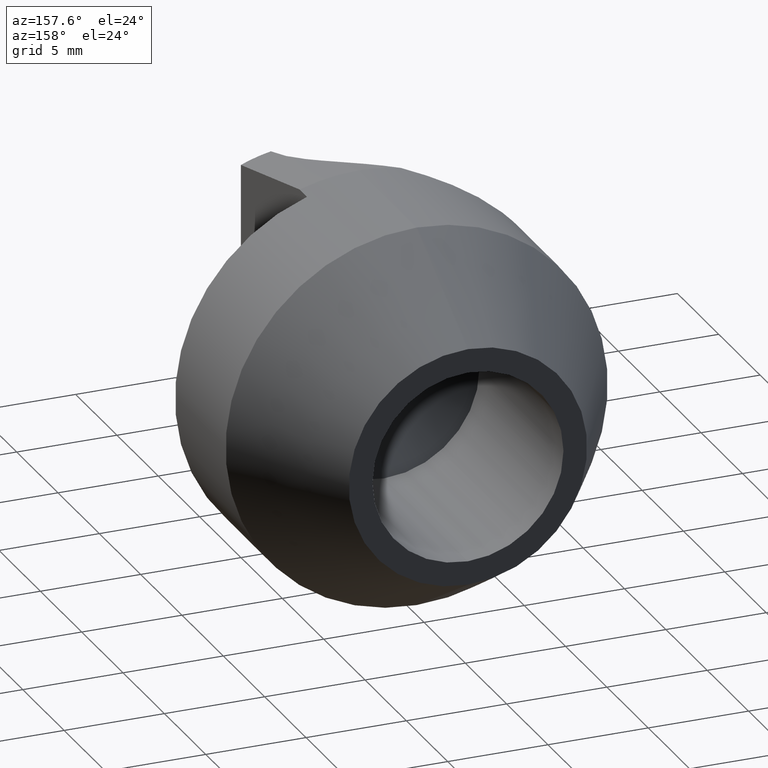
[diagram: clean part render]
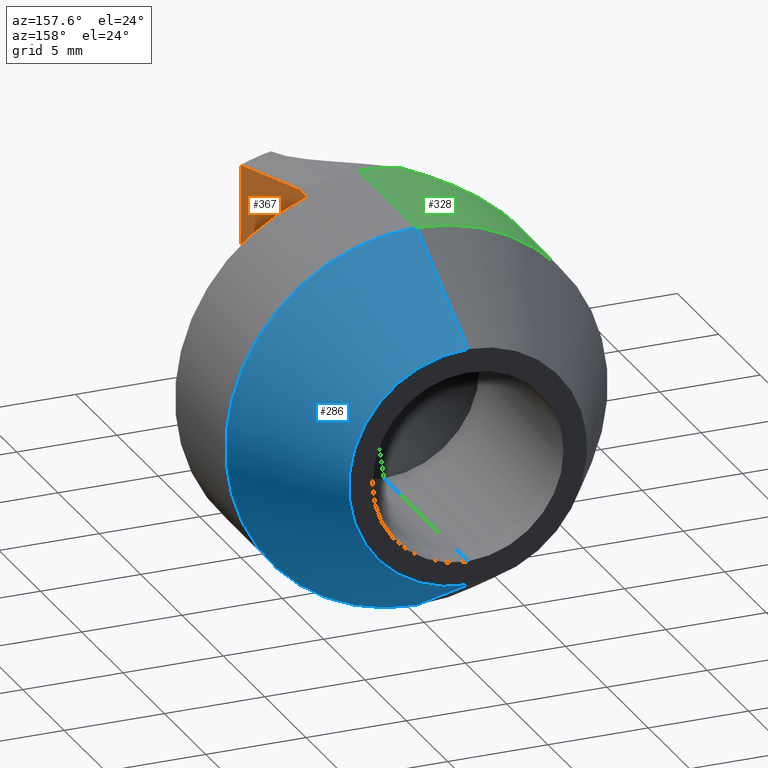
[diagram: same view with three faces highlighted in distinct colors, each labeled with its STEP entity id]
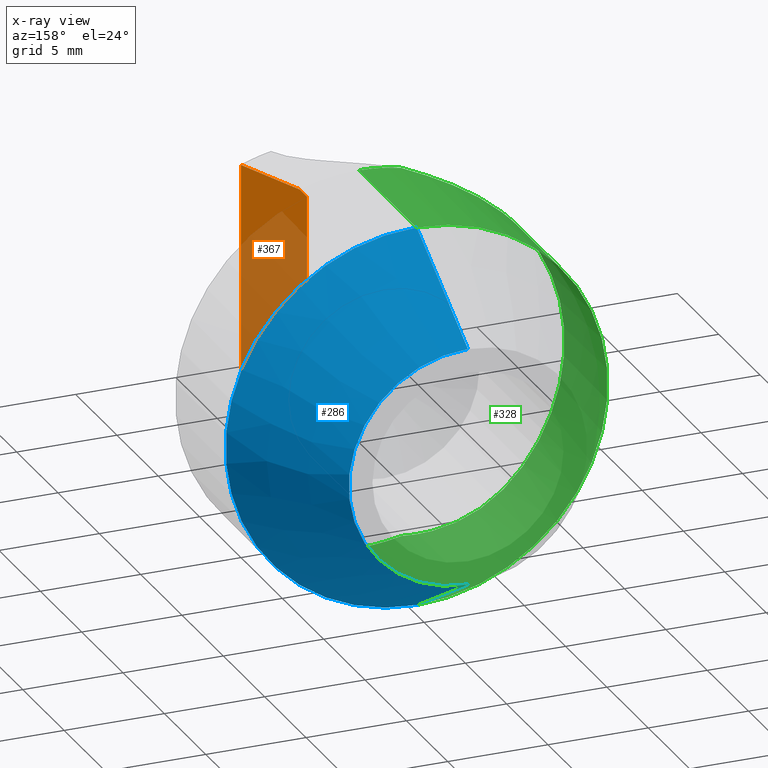
[diagram: x-ray of the same camera — body ghosted, the three highlighted faces saturated]
A machine part, auxiliary view with three faces highlighted in distinct colors.
The next image is the same camera in x-ray (body ghosted, the three faces saturated) — at least one of them is partly hidden behind the body in this view.
Their STEP definitions:

[orange] entity #367 — the highlighted planar face has unit normal (-1, -0, 0).
#6 = B_SPLINE_CURVE_WITH_KNOTS ( 'NONE', 3,
 ( #506, #469, #110, #206 ),
 .UNSPECIFIED., .F., .F.,
 ( 4, 4 ),
 ( 0.02086923273372161616, 0.02817891984336346606 ),
 .UNSPECIFIED. ) ;
#20 = EDGE_CURVE ( 'NONE', #480, #434, #172, .T. ) ;
#22 = CARTESIAN_POINT ( 'NONE',  ( 0.1159999999999999365, 0.3150000000000000022, -0.3566076275123682415 ) ) ;
#44 = ORIENTED_EDGE ( 'NONE', *, *, #266, .T. ) ;
#98 = B_SPLINE_CURVE_WITH_KNOTS ( 'NONE', 3,
 ( #383, #342, #164, #344 ),
 .UNSPECIFIED., .F., .F.,
 ( 4, 4 ),
 ( 0.02111884326923641614, 0.02842507369749490420 ),
 .UNSPECIFIED. ) ;
#110 = CARTESIAN_POINT ( 'NONE',  ( 0.1160000000000000198, 0.09325987593988223356, 0.3125914791619474609 ) ) ;
#129 = CARTESIAN_POINT ( 'NONE',  ( 0.1160000000000000059, 0.3150000000000000022, -0.3750000000000000555 ) ) ;
#130 = CARTESIAN_POINT ( 'NONE',  ( 0.1160000000000000059, 1.257517330416883377E-17, 0.3566076275123682415 ) ) ;
#153 = VECTOR ( 'NONE', #252, 39.37007874015748143 ) ;
#164 = CARTESIAN_POINT ( 'NONE',  ( 0.1160000000000000198, 0.1866109360835676578, -0.3346867140341758806 ) ) ;
#165 = VECTOR ( 'NONE', #484, 39.37007874015748143 ) ;
#166 = ORIENTED_EDGE ( 'NONE', *, *, #498, .T. ) ;
#167 = CARTESIAN_POINT ( 'NONE',  ( 0.1160000000000000059, 1.257517330416883377E-17, -0.3566076275123682415 ) ) ;
#172 = LINE ( 'NONE', #130, #285 ) ;
#175 = EDGE_CURVE ( 'NONE', #210, #517, #381, .T. ) ;
#177 = VERTEX_POINT ( 'NONE', #304 ) ;
#189 = EDGE_CURVE ( 'NONE', #177, #324, #466, .T. ) ;
#198 = ORIENTED_EDGE ( 'NONE', *, *, #189, .T. ) ;
#206 = CARTESIAN_POINT ( 'NONE',  ( 0.1160000000000000336, 0.000000000000000000, 0.2901727933490664268 ) ) ;
#210 = VERTEX_POINT ( 'NONE', #511 ) ;
#214 = AXIS2_PLACEMENT_3D ( 'NONE', #472, #217, #373 ) ;
#217 = DIRECTION ( 'NONE',  ( -1.000000000000000000, -1.084066664152485527E-16, 0.000000000000000000 ) ) ;
#220 = EDGE_CURVE ( 'NONE', #434, #210, #6, .T. ) ;
#252 = DIRECTION ( 'NONE',  ( 0.000000000000000000, 0.000000000000000000, -1.000000000000000000 ) ) ;
#259 = DIRECTION ( 'NONE',  ( 0.000000000000000000, 1.000000000000000000, 0.000000000000000000 ) ) ;
#266 = EDGE_CURVE ( 'NONE', #517, #177, #98, .T. ) ;
#267 = LINE ( 'NONE', #129, #165 ) ;
#276 = CARTESIAN_POINT ( 'NONE',  ( 0.1160000000000000336, -5.624125149066351640E-23, -0.2901727933490664268 ) ) ;
#285 = VECTOR ( 'NONE', #520, 39.37007874015748143 ) ;
#287 = FACE_OUTER_BOUND ( 'NONE', #491, .T. ) ;
#297 = CARTESIAN_POINT ( 'NONE',  ( 0.1160000000000000336, 0.000000000000000000, 0.000000000000000000 ) ) ;
#304 = CARTESIAN_POINT ( 'NONE',  ( 0.1160000000000000059, 0.2800000000000000266, -0.3566076275123683526 ) ) ;
#324 = VERTEX_POINT ( 'NONE', #22 ) ;
#342 = CARTESIAN_POINT ( 'NONE',  ( 0.1160000000000000198, 0.09326439239779267532, -0.3125925648705651927 ) ) ;
#343 = ORIENTED_EDGE ( 'NONE', *, *, #175, .T. ) ;
#344 = CARTESIAN_POINT ( 'NONE',  ( 0.1160000000000000059, 0.2800000000000000266, -0.3566076275123683526 ) ) ;
#365 = CARTESIAN_POINT ( 'NONE',  ( 0.1159999999999999365, 0.3150000000000000022, 0.3566076275123682415 ) ) ;
#367 = ADVANCED_FACE ( 'NONE', ( #287 ), #503, .F. ) ;
#373 = DIRECTION ( 'NONE',  ( 1.084066664152485527E-16, -1.000000000000000000, 0.000000000000000000 ) ) ;
#381 = LINE ( 'NONE', #297, #153 ) ;
#383 = CARTESIAN_POINT ( 'NONE',  ( 0.1160000000000000336, -5.624125149066351640E-23, -0.2901727933490664268 ) ) ;
#419 = ORIENTED_EDGE ( 'NONE', *, *, #20, .T. ) ;
#434 = VERTEX_POINT ( 'NONE', #528 ) ;
#466 = LINE ( 'NONE', #167, #474 ) ;
#469 = CARTESIAN_POINT ( 'NONE',  ( 0.1160000000000000198, 0.1866100775422518399, 0.3346865125115445205 ) ) ;
#472 = CARTESIAN_POINT ( 'NONE',  ( 0.1160000000000000336, 1.257517330416883685E-17, -0.3750000000000000555 ) ) ;
#474 = VECTOR ( 'NONE', #259, 39.37007874015748143 ) ;
#480 = VERTEX_POINT ( 'NONE', #365 ) ;
#481 = ORIENTED_EDGE ( 'NONE', *, *, #220, .T. ) ;
#484 = DIRECTION ( 'NONE',  ( -0.000000000000000000, -0.000000000000000000, 1.000000000000000000 ) ) ;
#491 = EDGE_LOOP ( 'NONE', ( #419, #481, #343, #44, #198, #166 ) ) ;
#498 = EDGE_CURVE ( 'NONE', #324, #480, #267, .T. ) ;
#503 = PLANE ( 'NONE',  #214 ) ;
#506 = CARTESIAN_POINT ( 'NONE',  ( 0.1160000000000000059, 0.2800000000000000266, 0.3566076275123683526 ) ) ;
#511 = CARTESIAN_POINT ( 'NONE',  ( 0.1160000000000000336, 0.000000000000000000, 0.2901727933490664268 ) ) ;
#517 = VERTEX_POINT ( 'NONE', #276 ) ;
#520 = DIRECTION ( 'NONE',  ( -0.000000000000000000, -1.000000000000000000, -0.000000000000000000 ) ) ;
#528 = CARTESIAN_POINT ( 'NONE',  ( 0.1160000000000000059, 0.2800000000000000266, 0.3566076275123683526 ) ) ;

[blue] entity #286 — the highlighted conical surface has half-angle 30 deg.
#9 = ORIENTED_EDGE ( 'NONE', *, *, #516, .T. ) ;
#32 = CARTESIAN_POINT ( 'NONE',  ( 0.000000000000000000, 0.8000000000000000444, -0.2340000000000000135 ) ) ;
#37 = CARTESIAN_POINT ( 'NONE',  ( 0.000000000000000000, 0.5557808361327850610, 0.000000000000000000 ) ) ;
#40 = AXIS2_PLACEMENT_3D ( 'NONE', #94, #440, #229 ) ;
#56 = EDGE_LOOP ( 'NONE', ( #9, #83, #432, #296 ) ) ;
#60 = VERTEX_POINT ( 'NONE', #178 ) ;
#72 = FACE_OUTER_BOUND ( 'NONE', #56, .T. ) ;
#83 = ORIENTED_EDGE ( 'NONE', *, *, #92, .T. ) ;
#92 = EDGE_CURVE ( 'NONE', #60, #394, #453, .T. ) ;
#94 = CARTESIAN_POINT ( 'NONE',  ( 0.000000000000000000, 0.8000000000000000444, 0.000000000000000000 ) ) ;
#114 = EDGE_CURVE ( 'NONE', #249, #394, #553, .T. ) ;
#124 = CARTESIAN_POINT ( 'NONE',  ( 0.000000000000000000, 0.5557808361327850610, -0.3750000000000000555 ) ) ;
#178 = CARTESIAN_POINT ( 'NONE',  ( 3.729049503403690887E-17, 0.8000000000000000444, 0.2340000000000000135 ) ) ;
#184 = CARTESIAN_POINT ( 'NONE',  ( 0.000000000000000000, 0.5557808361327850610, -0.3750000000000000555 ) ) ;
#187 = DIRECTION ( 'NONE',  ( -0.000000000000000000, -1.000000000000000000, -0.000000000000000000 ) ) ;
#188 = CARTESIAN_POINT ( 'NONE',  ( 0.000000000000000000, 0.5557808361327850610, 0.000000000000000000 ) ) ;
#191 = AXIS2_PLACEMENT_3D ( 'NONE', #188, #325, #234 ) ;
#207 = VERTEX_POINT ( 'NONE', #32 ) ;
#226 = LINE ( 'NONE', #184, #409 ) ;
#229 = DIRECTION ( 'NONE',  ( 0.000000000000000000, 0.000000000000000000, -1.000000000000000000 ) ) ;
#234 = DIRECTION ( 'NONE',  ( 0.000000000000000000, 0.000000000000000000, -1.000000000000000000 ) ) ;
#241 = CARTESIAN_POINT ( 'NONE',  ( 4.592425496802575451E-17, 0.5557808361327850610, 0.3750000000000000555 ) ) ;
#249 = VERTEX_POINT ( 'NONE', #124 ) ;
#277 = DIRECTION ( 'NONE',  ( 6.123233995736705639E-17, -0.8660254037844414832, 0.4999999999999950595 ) ) ;
#286 = ADVANCED_FACE ( 'NONE', ( #72 ), #457, .T. ) ;
#289 = CIRCLE ( 'NONE', #40, 0.2340000000000000135 ) ;
#296 = ORIENTED_EDGE ( 'NONE', *, *, #485, .F. ) ;
#321 = VECTOR ( 'NONE', #277, 39.37007874015748143 ) ;
#325 = DIRECTION ( 'NONE',  ( -0.000000000000000000, -1.000000000000000000, -0.000000000000000000 ) ) ;
#394 = VERTEX_POINT ( 'NONE', #241 ) ;
#409 = VECTOR ( 'NONE', #438, 39.37007874015748143 ) ;
#432 = ORIENTED_EDGE ( 'NONE', *, *, #114, .F. ) ;
#438 = DIRECTION ( 'NONE',  ( 0.000000000000000000, -0.8660254037844414832, -0.4999999999999950595 ) ) ;
#440 = DIRECTION ( 'NONE',  ( -0.000000000000000000, -1.000000000000000000, -0.000000000000000000 ) ) ;
#445 = CARTESIAN_POINT ( 'NONE',  ( 4.592425496802575451E-17, 0.5557808361327850610, 0.3750000000000000555 ) ) ;
#450 = DIRECTION ( 'NONE',  ( 0.000000000000000000, 0.000000000000000000, -1.000000000000000000 ) ) ;
#453 = LINE ( 'NONE', #445, #321 ) ;
#457 = CONICAL_SURFACE ( 'NONE', #524, 0.3750000000000000555, 0.5235987755982931535 ) ;
#485 = EDGE_CURVE ( 'NONE', #207, #249, #226, .T. ) ;
#516 = EDGE_CURVE ( 'NONE', #207, #60, #289, .T. ) ;
#524 = AXIS2_PLACEMENT_3D ( 'NONE', #37, #187, #450 ) ;
#553 = CIRCLE ( 'NONE', #191, 0.3750000000000000555 ) ;

[green] entity #328 — the highlighted cylindrical surface (partial cylindrical patch) has radius 9.525 mm, axis along (-0, -1, -0).
#5 = CARTESIAN_POINT ( 'NONE',  ( 0.000000000000000000, 0.2800000000000000266, -0.3750000000000000555 ) ) ;
#15 = DIRECTION ( 'NONE',  ( -0.000000000000000000, -1.000000000000000000, -0.000000000000000000 ) ) ;
#19 = CARTESIAN_POINT ( 'NONE',  ( 0.000000000000000000, 0.000000000000000000, 0.000000000000000000 ) ) ;
#21 = DIRECTION ( 'NONE',  ( 8.328804858732496440E-16, -1.000000000000000000, -0.000000000000000000 ) ) ;
#25 = CARTESIAN_POINT ( 'NONE',  ( -0.09173517367998862415, 0.2865513802599914395, -0.3637167740118287806 ) ) ;
#26 = CARTESIAN_POINT ( 'NONE',  ( -0.2632037937924236459, 0.3488152442028354949, 0.2673453676166723247 ) ) ;
#28 = CARTESIAN_POINT ( 'NONE',  ( -0.1751943201831005215, 0.3297314168070968887, 0.3317241511884505556 ) ) ;
#38 = CARTESIAN_POINT ( 'NONE',  ( -0.1564695837394791678, 0.3224289547519984533, 0.3409563486291329326 ) ) ;
#51 = CARTESIAN_POINT ( 'NONE',  ( 4.592425496802575451E-17, 0.000000000000000000, 0.3750000000000000555 ) ) ;
#52 = DIRECTION ( 'NONE',  ( -1.000000000000000000, -9.106159978880875423E-16, 0.000000000000000000 ) ) ;
#53 = CARTESIAN_POINT ( 'NONE',  ( -0.2636543918100952566, 0.3491696361071627286, -0.2675791188318064617 ) ) ;
#55 = CARTESIAN_POINT ( 'NONE',  ( -0.1755888523203660290, 0.3302752905494422131, -0.3320461939475211621 ) ) ;
#58 = VECTOR ( 'NONE', #182, 39.37007874015748143 ) ;
#62 = CARTESIAN_POINT ( 'NONE',  ( -0.08300000000000005984, 0.2800000000000000266, 0.3656993300513415868 ) ) ;
#77 = CARTESIAN_POINT ( 'NONE',  ( 0.000000000000000000, 0.2800000000000000266, 0.000000000000000000 ) ) ;
#97 = AXIS2_PLACEMENT_3D ( 'NONE', #77, #197, #261 ) ;
#99 = DIRECTION ( 'NONE',  ( -0.000000000000000000, -1.000000000000000000, -0.000000000000000000 ) ) ;
#101 = CARTESIAN_POINT ( 'NONE',  ( -0.2304421806409243656, 0.3447711106462970077, -0.2966624757818433489 ) ) ;
#107 = CARTESIAN_POINT ( 'NONE',  ( 0.000000000000000000, 0.3500000000000003109, 0.000000000000000000 ) ) ;
#112 = EDGE_CURVE ( 'NONE', #467, #349, #483, .T. ) ;
#124 = CARTESIAN_POINT ( 'NONE',  ( 0.000000000000000000, 0.5557808361327850610, -0.3750000000000000555 ) ) ;
#134 = CIRCLE ( 'NONE', #454, 0.3750000000000000555 ) ;
#138 = EDGE_CURVE ( 'NONE', #394, #249, #134, .T. ) ;
#140 = DIRECTION ( 'NONE',  ( 0.000000000000000000, 0.000000000000000000, -1.000000000000000000 ) ) ;
#143 = CARTESIAN_POINT ( 'NONE',  ( -0.1006927159445004383, 0.2926316993642499864, -0.3613552875620836269 ) ) ;
#148 = EDGE_LOOP ( 'NONE', ( #497, #551, #216, #505, #372, #537, #320, #554 ) ) ;
#169 = CARTESIAN_POINT ( 'NONE',  ( -0.2860095759409554406, 0.3499999999999998668, 0.2427940999160285440 ) ) ;
#182 = DIRECTION ( 'NONE',  ( -0.000000000000000000, -1.000000000000000000, -0.000000000000000000 ) ) ;
#185 = EDGE_CURVE ( 'NONE', #265, #340, #446, .T. ) ;
#196 = CARTESIAN_POINT ( 'NONE',  ( -0.1568029075420607765, 0.3231046993329488859, -0.3412513862951868093 ) ) ;
#197 = DIRECTION ( 'NONE',  ( -0.000000000000000000, -1.000000000000000000, -0.000000000000000000 ) ) ;
#212 = B_SPLINE_CURVE_WITH_KNOTS ( 'NONE', 3,
 ( #62, #256, #538, #410, #213, #244, #38, #28, #337, #460, #350, #378, #26, #508, #169, #348 ),
 .UNSPECIFIED., .F., .F.,
 ( 4, 2, 2, 2, 2, 2, 2, 4 ),
 ( 0.008225823542601592292, 0.009065952092789503897, 0.009906080642977413767, 0.01074620919316532537, 0.01158633774335323698, 0.01326659484372905498, 0.01410672339391696659, 0.01494685194410487646 ),
 .UNSPECIFIED. ) ;
#213 = CARTESIAN_POINT ( 'NONE',  ( -0.1284678968790500531, 0.3090911609416320260, 0.3524506349133188499 ) ) ;
#216 = ORIENTED_EDGE ( 'NONE', *, *, #509, .T. ) ;
#219 = CARTESIAN_POINT ( 'NONE',  ( -0.2929999999999999272, 0.3500000000000000333, 0.2340427311411316103 ) ) ;
#230 = CARTESIAN_POINT ( 'NONE',  ( -0.08300000000000004596, 0.2800000000000000822, -0.3656993300513415868 ) ) ;
#232 = CARTESIAN_POINT ( 'NONE',  ( -0.1190013356496691516, 0.3038747567303218267, -0.3557461862156089949 ) ) ;
#236 = CARTESIAN_POINT ( 'NONE',  ( -0.2123448512199925808, 0.3411185895289821635, -0.3098318642983278193 ) ) ;
#240 = AXIS2_PLACEMENT_3D ( 'NONE', #107, #21, #52 ) ;
#241 = CARTESIAN_POINT ( 'NONE',  ( 4.592425496802575451E-17, 0.5557808361327850610, 0.3750000000000000555 ) ) ;
#244 = CARTESIAN_POINT ( 'NONE',  ( -0.1471107150038001021, 0.3183150565916514907, 0.3450853345339359168 ) ) ;
#249 = VERTEX_POINT ( 'NONE', #124 ) ;
#256 = CARTESIAN_POINT ( 'NONE',  ( -0.09170077586641516010, 0.2865255818998113102, 0.3637245810223753151 ) ) ;
#261 = DIRECTION ( 'NONE',  ( 0.000000000000000000, 0.000000000000000000, -1.000000000000000000 ) ) ;
#262 = AXIS2_PLACEMENT_3D ( 'NONE', #19, #15, #140 ) ;
#264 = CARTESIAN_POINT ( 'NONE',  ( -0.08300000000000004596, 0.2800000000000000822, -0.3656993300513415868 ) ) ;
#265 = VERTEX_POINT ( 'NONE', #306 ) ;
#271 = CARTESIAN_POINT ( 'NONE',  ( 0.000000000000000000, 0.000000000000000000, -0.3750000000000000555 ) ) ;
#290 = DIRECTION ( 'NONE',  ( -0.000000000000000000, -1.000000000000000000, -0.000000000000000000 ) ) ;
#299 = AXIS2_PLACEMENT_3D ( 'NONE', #547, #556, #418 ) ;
#306 = CARTESIAN_POINT ( 'NONE',  ( 4.592425496802575451E-17, 0.2800000000000000266, 0.3750000000000000555 ) ) ;
#308 = EDGE_CURVE ( 'NONE', #349, #384, #526, .T. ) ;
#318 = LINE ( 'NONE', #271, #58 ) ;
#320 = ORIENTED_EDGE ( 'NONE', *, *, #408, .F. ) ;
#328 = ADVANCED_FACE ( 'NONE', ( #489 ), #531, .T. ) ;
#337 = CARTESIAN_POINT ( 'NONE',  ( -0.1846002839174809840, 0.3329312738228164537, 0.3265967015005262764 ) ) ;
#340 = VERTEX_POINT ( 'NONE', #496 ) ;
#341 = EDGE_CURVE ( 'NONE', #394, #265, #442, .T. ) ;
#348 = CARTESIAN_POINT ( 'NONE',  ( -0.2929999999999999272, 0.3500000000000000333, 0.2340427311411316103 ) ) ;
#349 = VERTEX_POINT ( 'NONE', #451 ) ;
#350 = CARTESIAN_POINT ( 'NONE',  ( -0.2301350362444401498, 0.3447174356441221610, 0.2969037184131732010 ) ) ;
#364 = CARTESIAN_POINT ( 'NONE',  ( -0.2929999999999999272, 0.3500000000000000333, -0.2340427311411317490 ) ) ;
#372 = ORIENTED_EDGE ( 'NONE', *, *, #308, .F. ) ;
#378 = CARTESIAN_POINT ( 'NONE',  ( -0.2551088060148685166, 0.3480442298683359970, 0.2750758719378489925 ) ) ;
#384 = VERTEX_POINT ( 'NONE', #264 ) ;
#394 = VERTEX_POINT ( 'NONE', #241 ) ;
#407 = CARTESIAN_POINT ( 'NONE',  ( -0.1283972217093217183, 0.3090590543249764344, -0.3524809478153913544 ) ) ;
#408 = EDGE_CURVE ( 'NONE', #340, #467, #212, .T. ) ;
#410 = CARTESIAN_POINT ( 'NONE',  ( -0.1191837504153634431, 0.3039814032407955890, 0.3556867496385958671 ) ) ;
#417 = CIRCLE ( 'NONE', #97, 0.3750000000000000555 ) ;
#418 = DIRECTION ( 'NONE',  ( 0.000000000000000000, 0.000000000000000000, -1.000000000000000000 ) ) ;
#422 = EDGE_CURVE ( 'NONE', #384, #493, #417, .T. ) ;
#442 = LINE ( 'NONE', #51, #447 ) ;
#446 = CIRCLE ( 'NONE', #299, 0.3750000000000000555 ) ;
#447 = VECTOR ( 'NONE', #99, 39.37007874015748143 ) ;
#448 = CARTESIAN_POINT ( 'NONE',  ( -0.2790028336375104390, 0.3499999999999999778, -0.2515658976339051334 ) ) ;
#451 = CARTESIAN_POINT ( 'NONE',  ( -0.2929999999999999272, 0.3500000000000000333, -0.2340427311411317490 ) ) ;
#454 = AXIS2_PLACEMENT_3D ( 'NONE', #502, #290, #459 ) ;
#459 = DIRECTION ( 'NONE',  ( 0.000000000000000000, 0.000000000000000000, -1.000000000000000000 ) ) ;
#460 = CARTESIAN_POINT ( 'NONE',  ( -0.2124558757189888014, 0.3411562254862400834, 0.3097711766550097501 ) ) ;
#467 = VERTEX_POINT ( 'NONE', #219 ) ;
#483 = CIRCLE ( 'NONE', #240, 0.3750000000000000555 ) ;
#489 = FACE_OUTER_BOUND ( 'NONE', #148, .T. ) ;
#493 = VERTEX_POINT ( 'NONE', #5 ) ;
#496 = CARTESIAN_POINT ( 'NONE',  ( -0.08300000000000005984, 0.2800000000000000266, 0.3656993300513415868 ) ) ;
#497 = ORIENTED_EDGE ( 'NONE', *, *, #341, .F. ) ;
#502 = CARTESIAN_POINT ( 'NONE',  ( 0.000000000000000000, 0.5557808361327850610, 0.000000000000000000 ) ) ;
#505 = ORIENTED_EDGE ( 'NONE', *, *, #422, .F. ) ;
#508 = CARTESIAN_POINT ( 'NONE',  ( -0.2786505154410455209, 0.3497913389229936332, 0.2512044444217857442 ) ) ;
#509 = EDGE_CURVE ( 'NONE', #249, #493, #318, .T. ) ;
#526 = B_SPLINE_CURVE_WITH_KNOTS ( 'NONE', 3,
 ( #364, #448, #53, #101, #236, #55, #196, #407, #232, #143, #25, #230 ),
 .UNSPECIFIED., .F., .F.,
 ( 4, 2, 2, 2, 2, 4 ),
 ( 1.226634733346699349E-18, 0.001688367877156766788, 0.003376735754313532276, 0.005065103631470297546, 0.005909287570048679314, 0.006753471508627061082 ),
 .UNSPECIFIED. ) ;
#531 = CYLINDRICAL_SURFACE ( 'NONE', #262, 0.3750000000000000555 ) ;
#537 = ORIENTED_EDGE ( 'NONE', *, *, #112, .F. ) ;
#538 = CARTESIAN_POINT ( 'NONE',  ( -0.1007612971968119692, 0.2926791131605727125, 0.3613377799493938114 ) ) ;
#547 = CARTESIAN_POINT ( 'NONE',  ( 0.000000000000000000, 0.2800000000000000266, 0.000000000000000000 ) ) ;
#551 = ORIENTED_EDGE ( 'NONE', *, *, #138, .T. ) ;
#554 = ORIENTED_EDGE ( 'NONE', *, *, #185, .F. ) ;
#556 = DIRECTION ( 'NONE',  ( -0.000000000000000000, -1.000000000000000000, -0.000000000000000000 ) ) ;